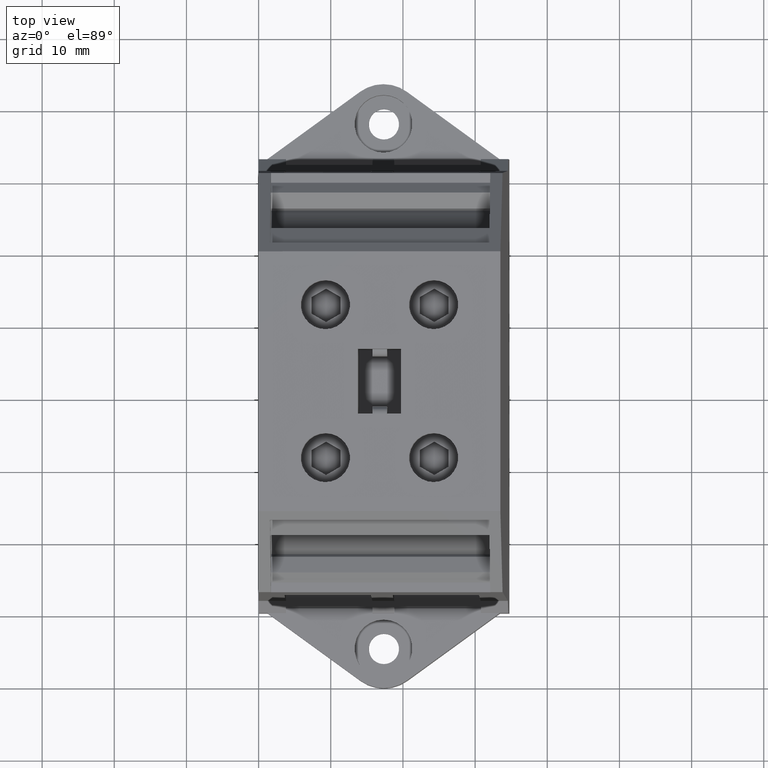
[diagram: clean part render]
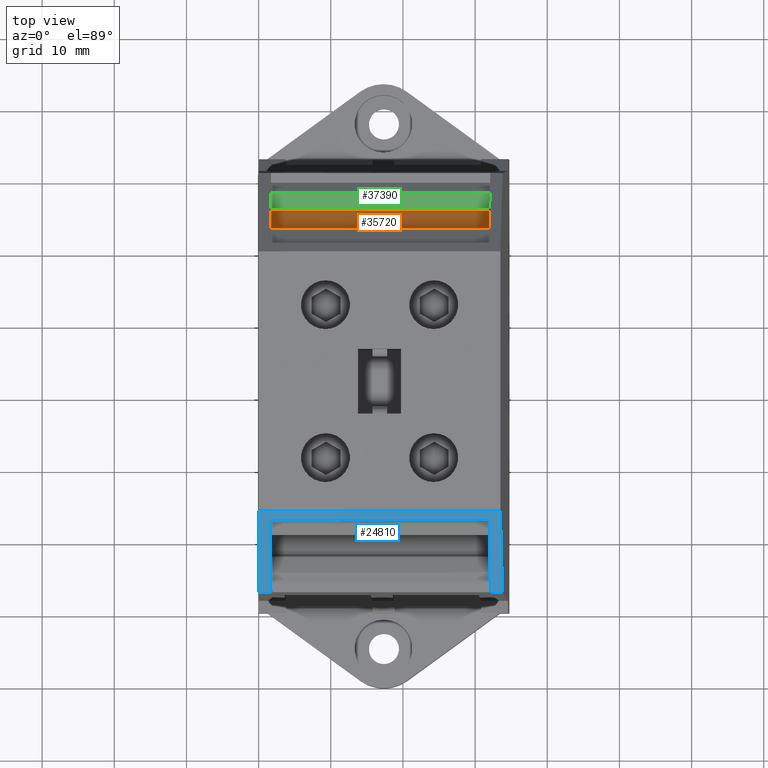
[diagram: same view with three faces highlighted in distinct colors, each labeled with its STEP entity id]
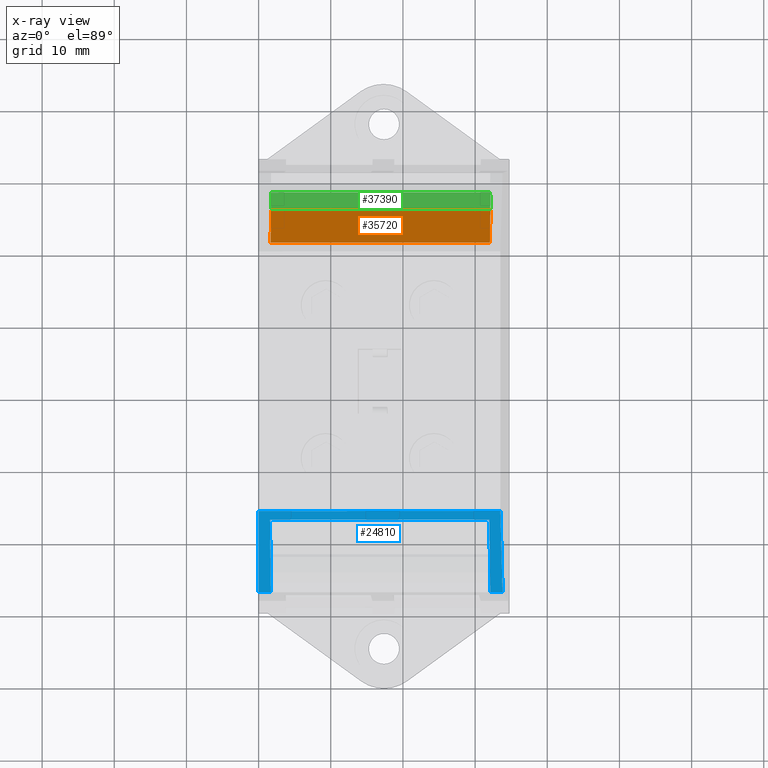
[diagram: x-ray of the same camera — body ghosted, the three highlighted faces saturated]
A machine part, top view with three faces highlighted in distinct colors.
The next image is the same camera in x-ray (body ghosted, the three faces saturated) — at least one of them is partly hidden behind the body in this view.
Their STEP definitions:

[orange] entity #35720 — the highlighted planar face has unit normal (-0.0099, 0.7071, 0.707).
#30480=CARTESIAN_POINT('',(42.7196868290802,127.622607212363,
-7.70000000000002));
#30490=VERTEX_POINT('',#30480);
#30520=CARTESIAN_POINT('',(83.0343119758471,167.93723235913,
-7.70000000000002));
#30530=DIRECTION('',(0.707106781186548,0.707106781186547,
-1.11022302462516E-16));
#30540=VECTOR('',#30530,1.);
#30550=LINE('',#30520,#30540);
#30560=CARTESIAN_POINT('',(38.2149141076049,123.117834490888,
-7.70000000000002));
#30570=VERTEX_POINT('',#30560);
#30580=EDGE_CURVE('',#30570,#30490,#30550,.T.);
#35420=CARTESIAN_POINT('',(41.3408286057664,126.24374898905,
-1.06581410364015E-14));
#35430=DIRECTION('',(-0.707106781186547,0.707106781186548,
5.07468380428054E-17));
#35440=DIRECTION('',(-0.707106781186548,-0.707106781186547,
4.33870296427252E-17));
#35450=AXIS2_PLACEMENT_3D('',#35420,#35430,#35440);
#35460=PLANE('',#35450);
#35470=CARTESIAN_POINT('',(83.0343119758471,167.93723235913,22.7));
#35480=DIRECTION('',(0.707106781186548,0.707106781186547,
-1.11022302462516E-16));
#35490=VECTOR('',#35480,1.);
#35500=LINE('',#35470,#35490);
#35510=CARTESIAN_POINT('',(38.2149141076049,123.117834490888,22.7));
#35520=VERTEX_POINT('',#35510);
#35530=CARTESIAN_POINT('',(42.7196868290802,127.622607212363,22.7));
#35540=VERTEX_POINT('',#35530);
#35550=EDGE_CURVE('',#35520,#35540,#35500,.T.);
#35560=ORIENTED_EDGE('',*,*,#35550,.T.);
#35570=CARTESIAN_POINT('',(38.2149141076049,123.117834490888,
18.8700046277446));
#35580=DIRECTION('',(-6.31205616762986E-17,8.6463049313877E-18,-1.));
#35590=VECTOR('',#35580,1.);
#35600=LINE('',#35570,#35590);
#35610=EDGE_CURVE('',#35520,#30570,#35600,.T.);
#35620=ORIENTED_EDGE('',*,*,#35610,.F.);
#35630=ORIENTED_EDGE('',*,*,#30580,.F.);
#35640=CARTESIAN_POINT('',(42.7196868290802,127.622607212363,
18.8700046277446));
#35650=DIRECTION('',(6.65626961797559E-17,-5.20417042793042E-18,1.));
#35660=VECTOR('',#35650,1.);
#35670=LINE('',#35640,#35660);
#35680=EDGE_CURVE('',#30490,#35540,#35670,.T.);
#35690=ORIENTED_EDGE('',*,*,#35680,.F.);
#35700=EDGE_LOOP('',(#35690,#35630,#35620,#35560));
#35710=FACE_OUTER_BOUND('',#35700,.T.);
#35720=ADVANCED_FACE('',(#35710),#35460,.T.);

[blue] entity #24810 — the highlighted planar face has unit normal (0.0099, 0.7071, -0.707).
#17160=CARTESIAN_POINT('',(91.0868732372739,124.100648082695,
24.4041524260295));
#17170=VERTEX_POINT('',#17160);
#17200=CARTESIAN_POINT('',(91.0868732372739,124.100648082695,
24.8769630110682));
#17210=DIRECTION('',(6.05186838565177E-17,-6.0444271116067E-18,1.));
#17220=VECTOR('',#17210,1.);
#17230=LINE('',#17200,#17220);
#17240=CARTESIAN_POINT('',(91.0868732372739,124.100648082695,22.7));
#17250=VERTEX_POINT('',#17240);
#17260=EDGE_CURVE('',#17250,#17170,#17230,.T.);
#17480=CARTESIAN_POINT('',(91.0868732372739,124.100648082695,
-7.70000000000002));
#17490=VERTEX_POINT('',#17480);
#17520=CARTESIAN_POINT('',(91.0868732372739,124.100648082695,
-9.40415242602953));
#17530=VERTEX_POINT('',#17520);
#17540=EDGE_CURVE('',#17530,#17490,#17230,.T.);
#17800=CARTESIAN_POINT('',(124.094472876151,91.0930484438182,
-9.86505541172497));
#17810=DIRECTION('',(0.707072315699932,-0.707072315699926,
-0.00987323358784481));
#17820=VECTOR('',#17810,1.);
#17830=LINE('',#17800,#17820);
#17840=CARTESIAN_POINT('',(80.0472364380752,135.140284881893,-9.25));
#17850=VERTEX_POINT('',#17840);
#17860=EDGE_CURVE('',#17850,#17530,#17830,.T.);
#19280=CARTESIAN_POINT('',(80.0472364380752,135.140284881893,24.25));
#19290=VERTEX_POINT('',#19280);
#19320=CARTESIAN_POINT('',(124.094472876151,91.0930484438182,
24.865055411725));
#19330=DIRECTION('',(-0.707072315699932,0.707072315699926,
-0.00987323358784472));
#19340=VECTOR('',#19330,1.);
#19350=LINE('',#19320,#19340);
#19360=EDGE_CURVE('',#17170,#19290,#19350,.T.);
#19830=CARTESIAN_POINT('',(124.094472876151,91.0930484438182,22.7));
#19840=DIRECTION('',(0.707106781186551,-0.707106781186544,
-4.70578360289828E-17));
#19850=VECTOR('',#19840,1.);
#19860=LINE('',#19830,#19850);
#19870=CARTESIAN_POINT('',(81.2472364380753,133.940284881893,22.7));
#19880=VERTEX_POINT('',#19870);
#19890=EDGE_CURVE('',#19880,#17250,#19860,.T.);
#20930=CARTESIAN_POINT('',(81.2472364380753,133.940284881893,15.));
#20940=DIRECTION('',(-6.05186838565177E-17,6.04442711160669E-18,-1.));
#20950=VECTOR('',#20940,1.);
#20960=LINE('',#20930,#20950);
#20970=CARTESIAN_POINT('',(81.2472364380753,133.940284881893,
-7.70000000000002));
#20980=VERTEX_POINT('',#20970);
#20990=EDGE_CURVE('',#19880,#20980,#20960,.T.);
#22380=CARTESIAN_POINT('',(124.094472876151,91.0930484438182,
-7.70000000000002));
#22390=DIRECTION('',(-0.707106781186551,0.707106781186544,
4.70578360289828E-17));
#22400=VECTOR('',#22390,1.);
#22410=LINE('',#22380,#22400);
#22420=EDGE_CURVE('',#17490,#20980,#22410,.T.);
#24610=CARTESIAN_POINT('',(91.0868732372739,124.100648082695,
-9.87696301106827));
#24620=DIRECTION('',(-0.707106781186544,-0.707106781186551,
3.85191163444234E-17));
#24630=DIRECTION('',(0.707106781186551,-0.707106781186544,
-4.70578360289828E-17));
#24640=AXIS2_PLACEMENT_3D('',#24610,#24620,#24630);
#24650=PLANE('',#24640);
#24660=CARTESIAN_POINT('',(80.0472364380753,135.140284881893,
24.8769630110682));
#24670=DIRECTION('',(6.05186838565177E-17,-6.04442711160669E-18,1.));
#24680=VECTOR('',#24670,1.);
#24690=LINE('',#24660,#24680);
#24700=EDGE_CURVE('',#17850,#19290,#24690,.T.);
#24710=ORIENTED_EDGE('',*,*,#24700,.T.);
#24720=ORIENTED_EDGE('',*,*,#17860,.F.);
#24730=ORIENTED_EDGE('',*,*,#17540,.F.);
#24740=ORIENTED_EDGE('',*,*,#22420,.F.);
#24750=ORIENTED_EDGE('',*,*,#20990,.T.);
#24760=ORIENTED_EDGE('',*,*,#19890,.F.);
#24770=ORIENTED_EDGE('',*,*,#17260,.F.);
#24780=ORIENTED_EDGE('',*,*,#19360,.F.);
#24790=EDGE_LOOP('',(#24780,#24770,#24760,#24750,#24740,#24730,#24720,
#24710));
#24800=FACE_OUTER_BOUND('',#24790,.T.);
#24810=ADVANCED_FACE('',(#24800),#24650,.F.);

[green] entity #37390 — the highlighted planar face has unit normal (-0.013, -0.3629, 0.9317).
#30720=CARTESIAN_POINT('',(37.9599920806319,124.254907772218,
-7.70000000000002));
#30730=VERTEX_POINT('',#30720);
#30760=CARTESIAN_POINT('',(83.0343119758471,106.702304425487,
-7.70000000000002));
#30770=DIRECTION('',(0.931839057156025,-0.362871839026633,
-5.55111512312578E-17));
#30780=VECTOR('',#30770,1.);
#30790=LINE('',#30760,#30780);
#30800=CARTESIAN_POINT('',(35.7301806908495,125.123229134667,
-7.70000000000002));
#30810=VERTEX_POINT('',#30800);
#30820=EDGE_CURVE('',#30810,#30730,#30790,.T.);
#35890=CARTESIAN_POINT('',(37.9599920806319,124.254907772218,22.7));
#35900=VERTEX_POINT('',#35890);
#35950=CARTESIAN_POINT('',(37.9599920806319,124.254907772218,
18.8700046277446));
#35960=DIRECTION('',(-6.28174100597926E-17,3.74570090833348E-18,-1.));
#35970=VECTOR('',#35960,1.);
#35980=LINE('',#35950,#35970);
#35990=EDGE_CURVE('',#35900,#30730,#35980,.T.);
#36960=CARTESIAN_POINT('',(35.7301806908496,125.123229134667,22.7));
#36970=VERTEX_POINT('',#36960);
#37070=CARTESIAN_POINT('',(35.7301806908496,125.123229134667,
18.8700046277446));
#37080=DIRECTION('',(-6.65626961797559E-17,5.20417042793042E-18,-1.));
#37090=VECTOR('',#37080,1.);
#37100=LINE('',#37070,#37090);
#37110=EDGE_CURVE('',#36970,#30810,#37100,.T.);
#37230=CARTESIAN_POINT('',(36.3385277425401,124.886329842114,
-1.06581410364015E-14));
#37240=DIRECTION('',(0.362871839026633,0.931839057156025,
-1.93042787084771E-17));
#37250=DIRECTION('',(-0.931839057156025,0.362871839026633,
6.39141669436978E-17));
#37260=AXIS2_PLACEMENT_3D('',#37230,#37240,#37250);
#37270=PLANE('',#37260);
#37280=CARTESIAN_POINT('',(83.0343119758471,106.702304425487,22.7));
#37290=DIRECTION('',(0.931839057156025,-0.362871839026633,
-5.55111512312578E-17));
#37300=VECTOR('',#37290,1.);
#37310=LINE('',#37280,#37300);
#37320=EDGE_CURVE('',#36970,#35900,#37310,.T.);
#37330=ORIENTED_EDGE('',*,*,#37320,.T.);
#37340=ORIENTED_EDGE('',*,*,#37110,.F.);
#37350=ORIENTED_EDGE('',*,*,#30820,.F.);
#37360=ORIENTED_EDGE('',*,*,#35990,.T.);
#37370=EDGE_LOOP('',(#37360,#37350,#37340,#37330));
#37380=FACE_OUTER_BOUND('',#37370,.T.);
#37390=ADVANCED_FACE('',(#37380),#37270,.T.);